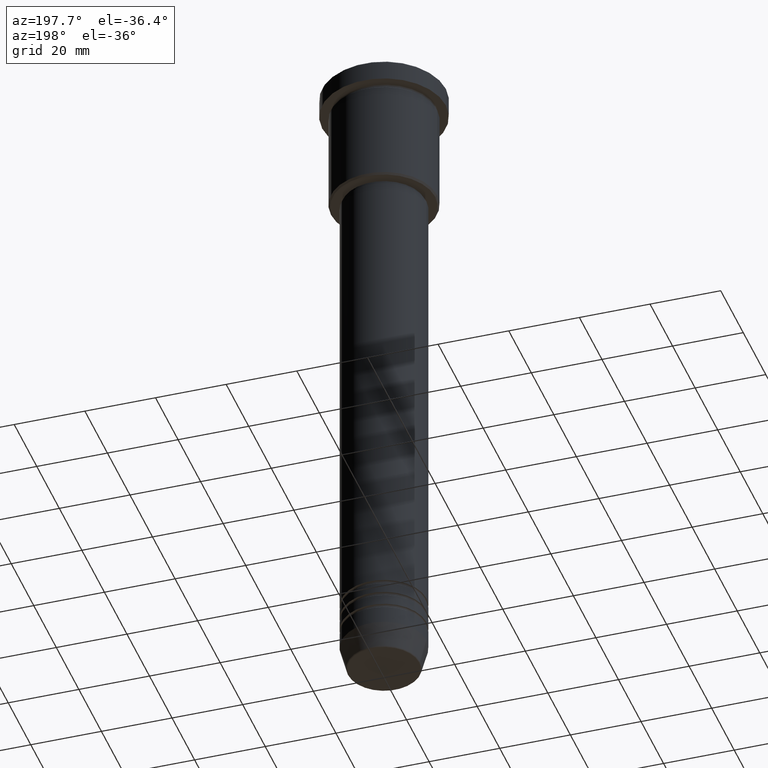
[diagram: clean part render]
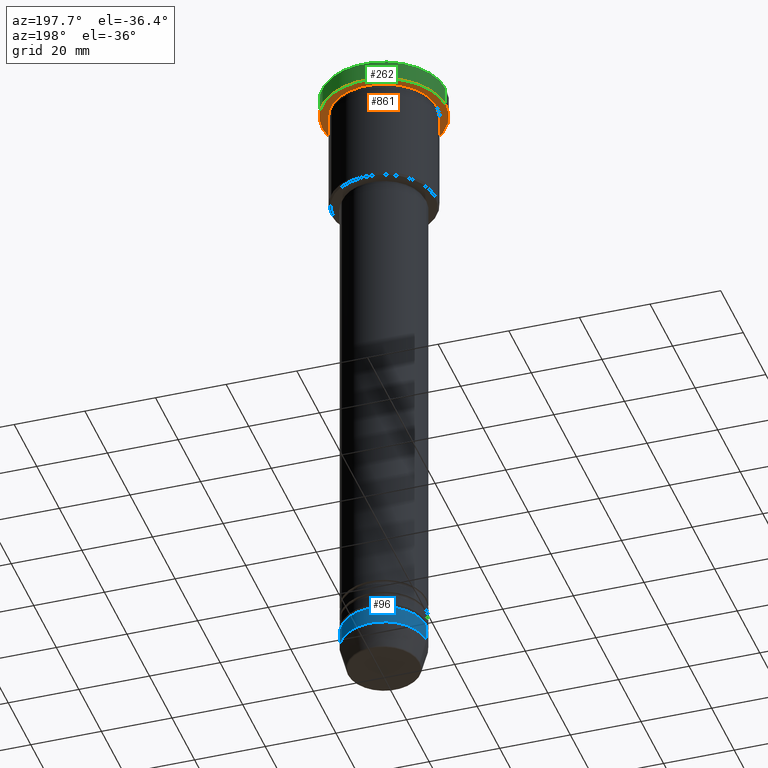
[diagram: same view with three faces highlighted in distinct colors, each labeled with its STEP entity id]
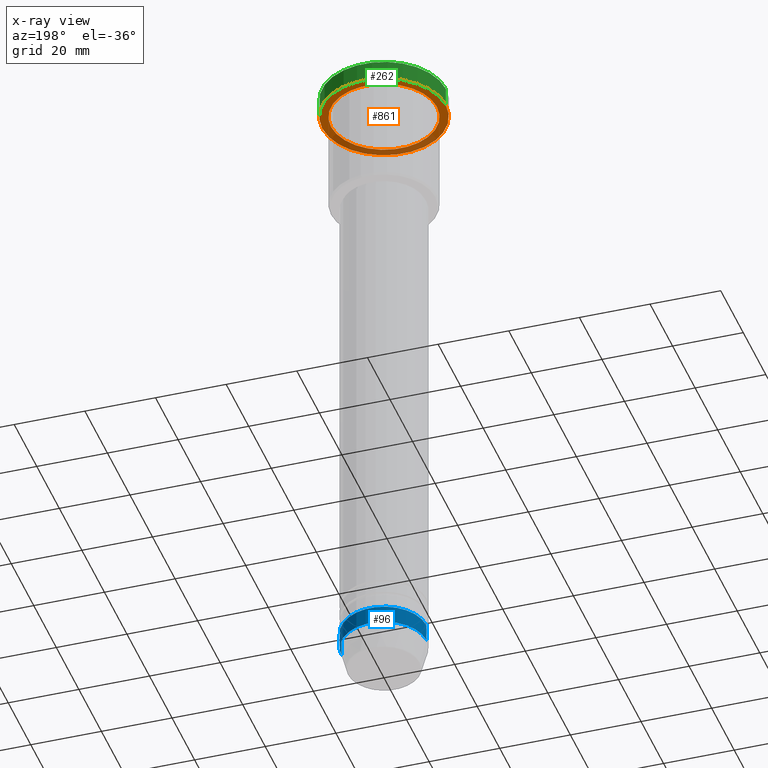
[diagram: x-ray of the same camera — body ghosted, the three highlighted faces saturated]
A machine part, auxiliary view with three faces highlighted in distinct colors.
The next image is the same camera in x-ray (body ghosted, the three faces saturated) — at least one of them is partly hidden behind the body in this view.
Their STEP definitions:

[orange] entity #861 — the highlighted planar face has unit normal (0, 0, -1).
#7 = DIRECTION ( 'NONE',  ( 0.000000000000000000, 0.000000000000000000, -1.000000000000000000 ) ) ;
#12 = AXIS2_PLACEMENT_3D ( 'NONE', #1016, #543, #638 ) ;
#104 = CARTESIAN_POINT ( 'NONE',  ( 15.00000000000000000, 1.836970198721029589E-15, -5.999999999999994671 ) ) ;
#108 = CARTESIAN_POINT ( 'NONE',  ( 0.000000000000000000, 17.50000000000000000, -5.999999999999995559 ) ) ;
#151 = DIRECTION ( 'NONE',  ( -1.000000000000000000, 0.000000000000000000, 0.000000000000000000 ) ) ;
#156 = EDGE_CURVE ( 'NONE', #892, #225, #1025, .T. ) ;
#225 = VERTEX_POINT ( 'NONE', #626 ) ;
#291 = CARTESIAN_POINT ( 'NONE',  ( -17.50000000000000000, 2.143131898507868248E-15, -5.999999999999995559 ) ) ;
#299 = EDGE_CURVE ( 'NONE', #225, #892, #706, .T. ) ;
#376 = PLANE ( 'NONE',  #995 ) ;
#406 = CIRCLE ( 'NONE', #1070, 15.00000000000000000 ) ;
#428 = DIRECTION ( 'NONE',  ( -1.000000000000000000, 0.000000000000000000, 0.000000000000000000 ) ) ;
#465 = FACE_OUTER_BOUND ( 'NONE', #951, .T. ) ;
#475 = AXIS2_PLACEMENT_3D ( 'NONE', #599, #512, #428 ) ;
#512 = DIRECTION ( 'NONE',  ( -0.000000000000000000, -0.000000000000000000, 1.000000000000000000 ) ) ;
#543 = DIRECTION ( 'NONE',  ( -0.000000000000000000, -0.000000000000000000, 1.000000000000000000 ) ) ;
#544 = DIRECTION ( 'NONE',  ( -1.000000000000000000, 0.000000000000000000, -0.000000000000000000 ) ) ;
#570 = EDGE_CURVE ( 'NONE', #791, #850, #837, .T. ) ;
#573 = CARTESIAN_POINT ( 'NONE',  ( 0.000000000000000000, 0.000000000000000000, -5.999999999999995559 ) ) ;
#599 = CARTESIAN_POINT ( 'NONE',  ( 0.000000000000000000, 0.000000000000000000, -5.999999999999995559 ) ) ;
#626 = CARTESIAN_POINT ( 'NONE',  ( 17.50000000000000000, 0.000000000000000000, -5.999999999999995559 ) ) ;
#638 = DIRECTION ( 'NONE',  ( 1.000000000000000000, 0.000000000000000000, 0.000000000000000000 ) ) ;
#648 = FACE_BOUND ( 'NONE', #1145, .T. ) ;
#706 = CIRCLE ( 'NONE', #12, 17.50000000000000000 ) ;
#725 = AXIS2_PLACEMENT_3D ( 'NONE', #573, #937, #946 ) ;
#766 = ORIENTED_EDGE ( 'NONE', *, *, #570, .T. ) ;
#791 = VERTEX_POINT ( 'NONE', #1085 ) ;
#798 = ORIENTED_EDGE ( 'NONE', *, *, #1013, .T. ) ;
#837 = CIRCLE ( 'NONE', #475, 15.00000000000000000 ) ;
#850 = VERTEX_POINT ( 'NONE', #104 ) ;
#861 = ADVANCED_FACE ( 'NONE', ( #648, #465 ), #376, .T. ) ;
#863 = DIRECTION ( 'NONE',  ( -0.000000000000000000, -0.000000000000000000, 1.000000000000000000 ) ) ;
#892 = VERTEX_POINT ( 'NONE', #291 ) ;
#937 = DIRECTION ( 'NONE',  ( -0.000000000000000000, -0.000000000000000000, 1.000000000000000000 ) ) ;
#946 = DIRECTION ( 'NONE',  ( 1.000000000000000000, 0.000000000000000000, 0.000000000000000000 ) ) ;
#951 = EDGE_LOOP ( 'NONE', ( #962, #991 ) ) ;
#962 = ORIENTED_EDGE ( 'NONE', *, *, #299, .F. ) ;
#991 = ORIENTED_EDGE ( 'NONE', *, *, #156, .F. ) ;
#995 = AXIS2_PLACEMENT_3D ( 'NONE', #108, #7, #544 ) ;
#1013 = EDGE_CURVE ( 'NONE', #850, #791, #406, .T. ) ;
#1016 = CARTESIAN_POINT ( 'NONE',  ( 0.000000000000000000, 0.000000000000000000, -5.999999999999995559 ) ) ;
#1024 = CARTESIAN_POINT ( 'NONE',  ( 0.000000000000000000, 0.000000000000000000, -5.999999999999995559 ) ) ;
#1025 = CIRCLE ( 'NONE', #725, 17.50000000000000000 ) ;
#1070 = AXIS2_PLACEMENT_3D ( 'NONE', #1024, #863, #151 ) ;
#1085 = CARTESIAN_POINT ( 'NONE',  ( -15.00000000000000000, 0.000000000000000000, -5.999999999999994671 ) ) ;
#1145 = EDGE_LOOP ( 'NONE', ( #766, #798 ) ) ;

[blue] entity #96 — the highlighted cylindrical surface (partial cylindrical patch) has radius 12 mm, axis along (-0, -0, 1).
#24 = CYLINDRICAL_SURFACE ( 'NONE', #649, 12.00000000000000000 ) ;
#26 = DIRECTION ( 'NONE',  ( -0.000000000000000000, -0.000000000000000000, 1.000000000000000000 ) ) ;
#30 = CARTESIAN_POINT ( 'NONE',  ( 0.000000000000000000, 0.000000000000000000, -184.0000000000000000 ) ) ;
#34 = DIRECTION ( 'NONE',  ( -0.000000000000000000, -0.000000000000000000, 1.000000000000000000 ) ) ;
#53 = VECTOR ( 'NONE', #1167, 1000.000000000000000 ) ;
#62 = ORIENTED_EDGE ( 'NONE', *, *, #425, .F. ) ;
#96 = ADVANCED_FACE ( 'NONE', ( #307 ), #24, .T. ) ;
#106 = DIRECTION ( 'NONE',  ( -0.000000000000000000, -0.000000000000000000, 1.000000000000000000 ) ) ;
#152 = VERTEX_POINT ( 'NONE', #753 ) ;
#169 = VERTEX_POINT ( 'NONE', #864 ) ;
#182 = AXIS2_PLACEMENT_3D ( 'NONE', #30, #1135, #231 ) ;
#195 = CIRCLE ( 'NONE', #1164, 12.00000000000000000 ) ;
#211 = CIRCLE ( 'NONE', #182, 12.00000000000000000 ) ;
#231 = DIRECTION ( 'NONE',  ( 1.000000000000000000, 0.000000000000000000, 0.000000000000000000 ) ) ;
#241 = CARTESIAN_POINT ( 'NONE',  ( 0.000000000000000000, 0.000000000000000000, 0.000000000000000000 ) ) ;
#245 = CARTESIAN_POINT ( 'NONE',  ( -12.00000000000000000, 1.469576158976823947E-15, 0.000000000000000000 ) ) ;
#283 = CARTESIAN_POINT ( 'NONE',  ( 0.000000000000000000, 0.000000000000000000, -179.0000000000000284 ) ) ;
#307 = FACE_OUTER_BOUND ( 'NONE', #597, .T. ) ;
#382 = DIRECTION ( 'NONE',  ( 1.000000000000000000, 0.000000000000000000, 0.000000000000000000 ) ) ;
#425 = EDGE_CURVE ( 'NONE', #152, #1059, #592, .T. ) ;
#489 = DIRECTION ( 'NONE',  ( 1.000000000000000000, 0.000000000000000000, 0.000000000000000000 ) ) ;
#490 = ORIENTED_EDGE ( 'NONE', *, *, #621, .T. ) ;
#498 = EDGE_CURVE ( 'NONE', #152, #169, #211, .T. ) ;
#592 = LINE ( 'NONE', #672, #993 ) ;
#597 = EDGE_LOOP ( 'NONE', ( #1152, #490, #1086, #62 ) ) ;
#621 = EDGE_CURVE ( 'NONE', #169, #789, #1057, .T. ) ;
#649 = AXIS2_PLACEMENT_3D ( 'NONE', #241, #34, #489 ) ;
#672 = CARTESIAN_POINT ( 'NONE',  ( 12.00000000000000000, 0.000000000000000000, 0.000000000000000000 ) ) ;
#709 = EDGE_CURVE ( 'NONE', #1059, #789, #195, .T. ) ;
#753 = CARTESIAN_POINT ( 'NONE',  ( 12.00000000000000000, 0.000000000000000000, -184.0000000000000000 ) ) ;
#764 = CARTESIAN_POINT ( 'NONE',  ( 12.00000000000000000, 0.000000000000000000, -179.0000000000000284 ) ) ;
#789 = VERTEX_POINT ( 'NONE', #967 ) ;
#864 = CARTESIAN_POINT ( 'NONE',  ( -12.00000000000000000, 1.469576158976823947E-15, -184.0000000000000000 ) ) ;
#967 = CARTESIAN_POINT ( 'NONE',  ( -12.00000000000000000, 1.469576158976823947E-15, -179.0000000000000284 ) ) ;
#993 = VECTOR ( 'NONE', #26, 1000.000000000000000 ) ;
#1057 = LINE ( 'NONE', #245, #53 ) ;
#1059 = VERTEX_POINT ( 'NONE', #764 ) ;
#1086 = ORIENTED_EDGE ( 'NONE', *, *, #709, .F. ) ;
#1135 = DIRECTION ( 'NONE',  ( -0.000000000000000000, -0.000000000000000000, 1.000000000000000000 ) ) ;
#1152 = ORIENTED_EDGE ( 'NONE', *, *, #498, .T. ) ;
#1164 = AXIS2_PLACEMENT_3D ( 'NONE', #283, #106, #382 ) ;
#1167 = DIRECTION ( 'NONE',  ( -0.000000000000000000, -0.000000000000000000, 1.000000000000000000 ) ) ;

[green] entity #262 — the highlighted cylindrical surface (partial cylindrical patch) has radius 17.5 mm, axis along (-0, -0, 1).
#12 = AXIS2_PLACEMENT_3D ( 'NONE', #1016, #543, #638 ) ;
#129 = EDGE_CURVE ( 'NONE', #609, #681, #370, .T. ) ;
#191 = ORIENTED_EDGE ( 'NONE', *, *, #415, .T. ) ;
#225 = VERTEX_POINT ( 'NONE', #626 ) ;
#262 = ADVANCED_FACE ( 'NONE', ( #1063 ), #613, .T. ) ;
#291 = CARTESIAN_POINT ( 'NONE',  ( -17.50000000000000000, 2.143131898507868248E-15, -5.999999999999995559 ) ) ;
#299 = EDGE_CURVE ( 'NONE', #225, #892, #706, .T. ) ;
#305 = DIRECTION ( 'NONE',  ( -0.000000000000000000, -0.000000000000000000, 1.000000000000000000 ) ) ;
#319 = CARTESIAN_POINT ( 'NONE',  ( 0.000000000000000000, 0.000000000000000000, -0.5000000000000003331 ) ) ;
#352 = ORIENTED_EDGE ( 'NONE', *, *, #129, .T. ) ;
#370 = CIRCLE ( 'NONE', #1180, 17.50000000000000000 ) ;
#373 = EDGE_CURVE ( 'NONE', #225, #681, #923, .T. ) ;
#415 = EDGE_CURVE ( 'NONE', #892, #609, #576, .T. ) ;
#443 = AXIS2_PLACEMENT_3D ( 'NONE', #976, #888, #882 ) ;
#486 = ORIENTED_EDGE ( 'NONE', *, *, #373, .F. ) ;
#532 = VECTOR ( 'NONE', #561, 1000.000000000000000 ) ;
#543 = DIRECTION ( 'NONE',  ( -0.000000000000000000, -0.000000000000000000, 1.000000000000000000 ) ) ;
#561 = DIRECTION ( 'NONE',  ( -0.000000000000000000, -0.000000000000000000, 1.000000000000000000 ) ) ;
#576 = LINE ( 'NONE', #663, #760 ) ;
#581 = EDGE_LOOP ( 'NONE', ( #1046, #191, #352, #486 ) ) ;
#609 = VERTEX_POINT ( 'NONE', #707 ) ;
#613 = CYLINDRICAL_SURFACE ( 'NONE', #443, 17.50000000000000000 ) ;
#626 = CARTESIAN_POINT ( 'NONE',  ( 17.50000000000000000, 0.000000000000000000, -5.999999999999995559 ) ) ;
#638 = DIRECTION ( 'NONE',  ( 1.000000000000000000, 0.000000000000000000, 0.000000000000000000 ) ) ;
#663 = CARTESIAN_POINT ( 'NONE',  ( -17.50000000000000000, 2.143131898507868248E-15, 0.000000000000000000 ) ) ;
#679 = DIRECTION ( 'NONE',  ( 0.000000000000000000, 0.000000000000000000, -1.000000000000000000 ) ) ;
#681 = VERTEX_POINT ( 'NONE', #814 ) ;
#706 = CIRCLE ( 'NONE', #12, 17.50000000000000000 ) ;
#707 = CARTESIAN_POINT ( 'NONE',  ( -17.50000000000000000, 2.143131898507868248E-15, -0.5000000000000003331 ) ) ;
#760 = VECTOR ( 'NONE', #305, 1000.000000000000000 ) ;
#814 = CARTESIAN_POINT ( 'NONE',  ( 17.50000000000000000, 0.000000000000000000, -0.5000000000000003331 ) ) ;
#825 = CARTESIAN_POINT ( 'NONE',  ( 17.50000000000000000, 0.000000000000000000, 0.000000000000000000 ) ) ;
#882 = DIRECTION ( 'NONE',  ( 1.000000000000000000, 0.000000000000000000, 0.000000000000000000 ) ) ;
#888 = DIRECTION ( 'NONE',  ( -0.000000000000000000, -0.000000000000000000, 1.000000000000000000 ) ) ;
#892 = VERTEX_POINT ( 'NONE', #291 ) ;
#923 = LINE ( 'NONE', #825, #532 ) ;
#976 = CARTESIAN_POINT ( 'NONE',  ( 0.000000000000000000, 0.000000000000000000, 0.000000000000000000 ) ) ;
#1016 = CARTESIAN_POINT ( 'NONE',  ( 0.000000000000000000, 0.000000000000000000, -5.999999999999995559 ) ) ;
#1027 = DIRECTION ( 'NONE',  ( 1.000000000000000000, 0.000000000000000000, 0.000000000000000000 ) ) ;
#1046 = ORIENTED_EDGE ( 'NONE', *, *, #299, .T. ) ;
#1063 = FACE_OUTER_BOUND ( 'NONE', #581, .T. ) ;
#1180 = AXIS2_PLACEMENT_3D ( 'NONE', #319, #679, #1027 ) ;